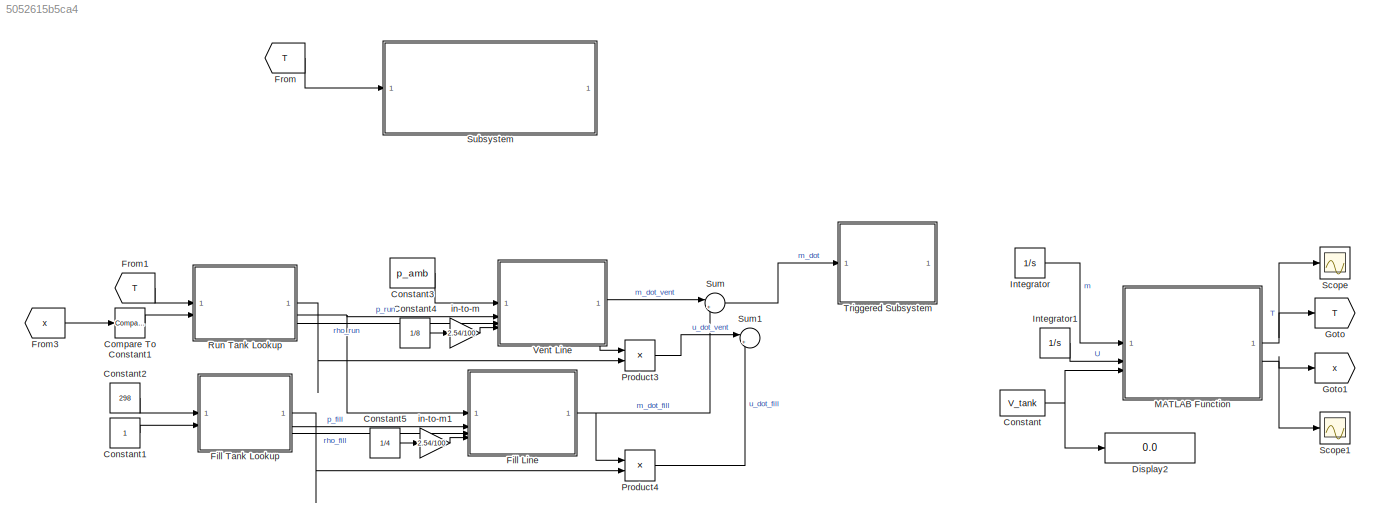
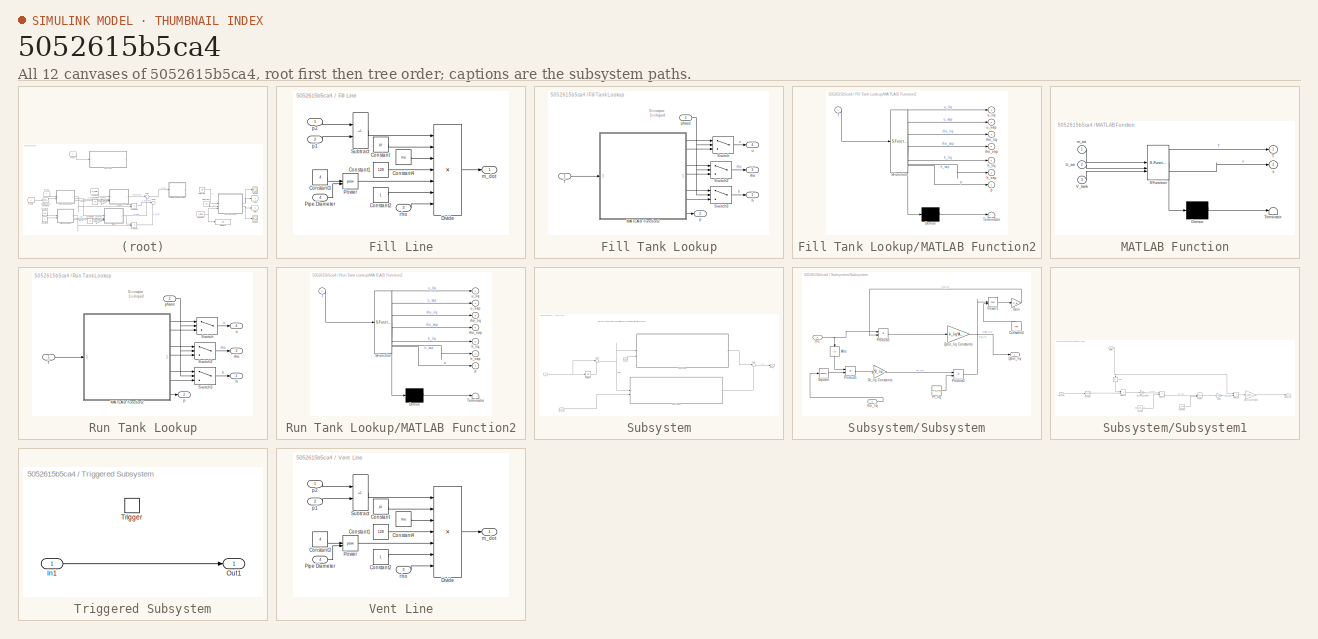
[diagram: thumbnail index - all 12 canvases of the model, root first then tree order]
MODEL slx_5052615b5ca4
KIND model
CONFIG AbsTol = auto
CONFIG EnableMultiTasking = off
CONFIG FixedStep = auto
CONFIG MaxStep = auto
CONFIG MinStep = auto
CONFIG RelTol = 1e-3
CONFIG SampleTimeConstraint = Unconstrained
CONFIG SolverName = VariableStepAuto
CONFIG StartTime = 0.0
CONFIG StopTime = 10
BLOCK [Reference] Compare To Constant1  REF=simulink/Logic and Bit
Operations/Compare
To Constant
  SourceBlock = simulink/Logic and Bit\nOperations/Compare\nTo Constant
  SourceType = Compare To Constant
BLOCK [Constant] Constant
  Value = V_tank
BLOCK [Constant] Constant1
BLOCK [Constant] Constant2
  Value = 298
BLOCK [Constant] Constant3
  Value = p_amb
BLOCK [Constant] Constant4
  Value = 1/8
BLOCK [Constant] Constant5
  Value = 1/4
BLOCK [Display] Display2
  Decimation = 1
BLOCK [SubSystem] Fill Line
BLOCK [Constant] Fill Line/Constant
  Value = pi
BLOCK [Constant] Fill Line/Constant1
  Value = 128
BLOCK [Constant] Fill Line/Constant2
  Value = L
BLOCK [Constant] Fill Line/Constant3
  Value = 4
BLOCK [Constant] Fill Line/Constant4
  Value = mu
BLOCK [Product] Fill Line/Divide
  Inputs = **//*//
BLOCK [Inport] Fill Line/Pipe Diameter
  Port = 4
BLOCK [Math] Fill Line/Power
  Operator = pow
BLOCK [Sum] Fill Line/Subtract
  IconShape = rectangular
  Inputs = +-
BLOCK [Outport] Fill Line/m_dot
BLOCK [Inport] Fill Line/p1
  Port = 2
BLOCK [Inport] Fill Line/p2
BLOCK [Inport] Fill Line/rho
  Port = 3
BLOCK [SubSystem] Fill Tank Lookup
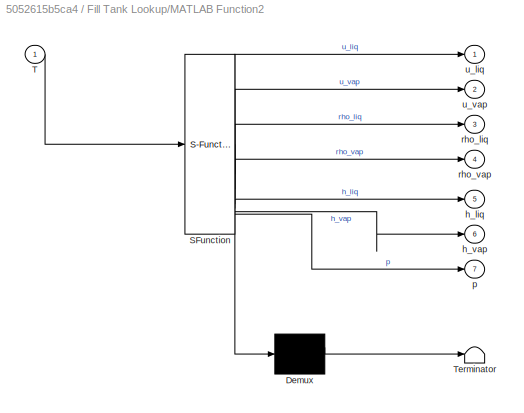
BLOCK [SubSystem] Fill Tank Lookup/MATLAB Function2
  ErrorFcn = Stateflow.Translate.translate
  PermitHierarchicalResolution = ExplicitOnly
  SFBlockType = MATLAB Function
  TreatAsAtomicUnit = on
BLOCK [Demux] Fill Tank Lookup/MATLAB Function2/ Demux 
  Outputs = 1
BLOCK [S-Function] Fill Tank Lookup/MATLAB Function2/ SFunction 
  EnableBusSupport = off
  FunctionName = sf_sfun
  PortCounts = [1 8]
  SFcnIsStateOwnerBlock = off
  SFunctionDeploymentMode = off
  Tag = Stateflow S-Function 3
BLOCK [Terminator] Fill Tank Lookup/MATLAB Function2/ Terminator 
BLOCK [Inport] Fill Tank Lookup/MATLAB Function2/T
BLOCK [Outport] Fill Tank Lookup/MATLAB Function2/h_liq
  Port = 5
BLOCK [Outport] Fill Tank Lookup/MATLAB Function2/h_vap
  Port = 6
BLOCK [Outport] Fill Tank Lookup/MATLAB Function2/p
  Port = 7
BLOCK [Outport] Fill Tank Lookup/MATLAB Function2/rho_liq
  Port = 3
BLOCK [Outport] Fill Tank Lookup/MATLAB Function2/rho_vap
  Port = 4
BLOCK [Outport] Fill Tank Lookup/MATLAB Function2/u_liq
  VectorParamsAs1DForOutWhenUnconnected = off
BLOCK [Outport] Fill Tank Lookup/MATLAB Function2/u_vap
  Port = 2
BLOCK [Switch] Fill Tank Lookup/Switch
  Criteria = u2 > Threshold
  InputSameDT = off
  SaturateOnIntegerOverflow = off
BLOCK [Switch] Fill Tank Lookup/Switch2
  Criteria = u2 > Threshold
  InputSameDT = off
  SaturateOnIntegerOverflow = off
BLOCK [Switch] Fill Tank Lookup/Switch3
  Criteria = u2 > Threshold
  InputSameDT = off
  SaturateOnIntegerOverflow = off
BLOCK [Inport] Fill Tank Lookup/T
BLOCK [Outport] Fill Tank Lookup/h
BLOCK [Outport] Fill Tank Lookup/p
  Port = 2
BLOCK [Inport] Fill Tank Lookup/phase
  Port = 2
BLOCK [Outport] Fill Tank Lookup/rho
  Port = 3
BLOCK [Outport] Fill Tank Lookup/u
  Port = 4
BLOCK [From] From
  GotoTag = T
BLOCK [From] From1
  GotoTag = T
BLOCK [From] From3
  GotoTag = x
BLOCK [Goto] Goto
  GotoTag = T
BLOCK [Goto] Goto1
  GotoTag = x
BLOCK [Integrator] Integrator
  InitialCondition = m_tot0
BLOCK [Integrator] Integrator1
  InitialCondition = U_tot0
BLOCK [SubSystem] MATLAB Function
  ErrorFcn = Stateflow.Translate.translate
  PermitHierarchicalResolution = ExplicitOnly
  SFBlockType = MATLAB Function
  TreatAsAtomicUnit = on
BLOCK [Demux] MATLAB Function/ Demux 
  Outputs = 1
BLOCK [S-Function] MATLAB Function/ SFunction 
  EnableBusSupport = off
  FunctionName = sf_sfun
  PortCounts = [3 3]
  SFcnIsStateOwnerBlock = off
  SFunctionDeploymentMode = off
  Tag = Stateflow S-Function 2
BLOCK [Terminator] MATLAB Function/ Terminator 
BLOCK [Outport] MATLAB Function/T
BLOCK [Inport] MATLAB Function/U_tot
  Port = 2
BLOCK [Inport] MATLAB Function/V_tank
  Port = 3
BLOCK [Inport] MATLAB Function/m_tot
BLOCK [Outport] MATLAB Function/x
  Port = 2
BLOCK [Product] Product3
BLOCK [Product] Product4
BLOCK [SubSystem] Run Tank Lookup
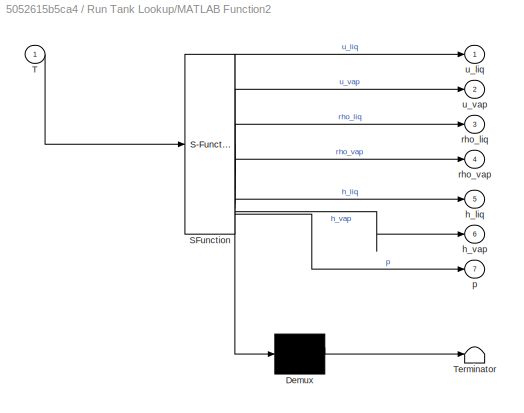
BLOCK [SubSystem] Run Tank Lookup/MATLAB Function2
  ErrorFcn = Stateflow.Translate.translate
  PermitHierarchicalResolution = ExplicitOnly
  SFBlockType = MATLAB Function
  TreatAsAtomicUnit = on
BLOCK [Demux] Run Tank Lookup/MATLAB Function2/ Demux 
  Outputs = 1
BLOCK [S-Function] Run Tank Lookup/MATLAB Function2/ SFunction 
  EnableBusSupport = off
  FunctionName = sf_sfun
  PortCounts = [1 8]
  SFcnIsStateOwnerBlock = off
  SFunctionDeploymentMode = off
  Tag = Stateflow S-Function 1
BLOCK [Terminator] Run Tank Lookup/MATLAB Function2/ Terminator 
BLOCK [Inport] Run Tank Lookup/MATLAB Function2/T
BLOCK [Outport] Run Tank Lookup/MATLAB Function2/h_liq
  Port = 5
BLOCK [Outport] Run Tank Lookup/MATLAB Function2/h_vap
  Port = 6
BLOCK [Outport] Run Tank Lookup/MATLAB Function2/p
  Port = 7
BLOCK [Outport] Run Tank Lookup/MATLAB Function2/rho_liq
  Port = 3
BLOCK [Outport] Run Tank Lookup/MATLAB Function2/rho_vap
  Port = 4
BLOCK [Outport] Run Tank Lookup/MATLAB Function2/u_liq
  VectorParamsAs1DForOutWhenUnconnected = off
BLOCK [Outport] Run Tank Lookup/MATLAB Function2/u_vap
  Port = 2
BLOCK [Switch] Run Tank Lookup/Switch
  Criteria = u2 > Threshold
  InputSameDT = off
  SaturateOnIntegerOverflow = off
BLOCK [Switch] Run Tank Lookup/Switch2
  Criteria = u2 > Threshold
  InputSameDT = off
  SaturateOnIntegerOverflow = off
BLOCK [Switch] Run Tank Lookup/Switch3
  Criteria = u2 > Threshold
  InputSameDT = off
  SaturateOnIntegerOverflow = off
BLOCK [Inport] Run Tank Lookup/T
BLOCK [Outport] Run Tank Lookup/h
BLOCK [Outport] Run Tank Lookup/p
  Port = 2
BLOCK [Inport] Run Tank Lookup/phase
  Port = 2
BLOCK [Outport] Run Tank Lookup/rho
  Port = 3
BLOCK [Outport] Run Tank Lookup/u
  Port = 4
BLOCK [Scope] Scope
  ActiveDisplayYMaximum = 318.16653133785104
  ActiveDisplayYMinimum = 285.16578367227339
  Floating = off
  GraphicalSettings = {"AxesScalingProperties":{"AlignXAxis":"Center","AlignYAxis":"Center","AutoScaleXAxisLimits":false,"AxesScaling":"Manual","AxesScalingNumUpdates":10,"ExpandOnly":true,"ScaleAxesLimitsAtStop":false,"XAxisDataRange":100,"YAxisDataRange":80},"DisplayProperties":{"ColorOrder":["auto","auto","auto","auto","auto","auto","auto","auto","auto","auto","auto","auto","auto","auto","auto","auto","auto","auto",...<+2019ch>
  MultipleDisplayCache = [{"MaxYLimMag":310.37498270385339,"MaxYLimReal":318.16653133785104,"MinYLimMag":296.625155660714,"MinYLimReal":285.16578367227339,"PlotAsMagnitudePhase":false,"ShowGrid":true,"ShowLegend":false,"Title":"%<SignalLabel>","YLabel":""}]
  NumInputPorts = 1
  ScopeFrameLocation = window
  WasSavedAsWebScope = on
  WindowPosition = [252.000000,-57.000000,957.000000,844.000000,]
BLOCK [Scope] Scope1
  ActiveDisplayYMaximum = 6.8981720116049186
  ActiveDisplayYMinimum = -4.5898613778918289
  DataLoggingVariableName = ScopeData1
  Floating = off
  GraphicalSettings = {"AxesScalingProperties":{"AlignXAxis":"Center","AlignYAxis":"Center","AutoScaleXAxisLimits":false,"AxesScaling":"Manual","AxesScalingNumUpdates":10,"ExpandOnly":true,"ScaleAxesLimitsAtStop":false,"XAxisDataRange":100,"YAxisDataRange":80},"DisplayProperties":{"ColorOrder":["auto","auto","auto","auto","auto","auto","auto","auto","auto","auto","auto","auto","auto","auto","auto","auto","auto","auto",...<+2002ch>
  MultipleDisplayCache = [{"MaxYLimMag":4.78271456468242,"MaxYLimReal":6.8981720116049186,"MinYLimMag":0,"MinYLimReal":-4.5898613778918289,"PlotAsMagnitudePhase":false,"ShowGrid":true,"ShowLegend":false,"Title":"%<SignalLabel>","YLabel":""}]
  NumInputPorts = 1
  ScopeFrameLocation = window
  WasSavedAsWebScope = on
  WindowPosition = [203.000000,-40.000000,957.000000,844.000000,]
BLOCK [SubSystem] Subsystem
BLOCK [Outport] Subsystem/Qdot_f
BLOCK [SubSystem] Subsystem/Subsystem
BLOCK [Abs] Subsystem/Subsystem/Abs
  NameLocation = left
  SaturateOnIntegerOverflow = off
BLOCK [Constant] Subsystem/Subsystem/Constant4
  NameLocation = right
  Value = n_liq
BLOCK [Gain] Subsystem/Subsystem/Gain
  Gain = C_liq
BLOCK [Gain] Subsystem/Subsystem/Gr_liq Constants
  Gain = g*B_liq*L^3/mu^2
BLOCK [Inport] Subsystem/Subsystem/In1
BLOCK [Math] Subsystem/Subsystem/Power1
  Operator = pow
BLOCK [Constant] Subsystem/Subsystem/Pr_liq
  Value = mu*c_p/k_liq
BLOCK [Product] Subsystem/Subsystem/Product1
BLOCK [Product] Subsystem/Subsystem/Product2
BLOCK [Product] Subsystem/Subsystem/Product3
BLOCK [Outport] Subsystem/Subsystem/Qdot_liq
BLOCK [Gain] Subsystem/Subsystem/Qdot_liq Constants
  Gain = k_liq*A/L
BLOCK [Math] Subsystem/Subsystem/Square
  Operator = square
BLOCK [Inport] Subsystem/Subsystem/rho_liq
  Port = 2
BLOCK [SubSystem] Subsystem/Subsystem1
BLOCK [Abs] Subsystem/Subsystem1/Abs
  NameLocation = left
  SaturateOnIntegerOverflow = off
BLOCK [Constant] Subsystem/Subsystem1/Constant
  Value = n_vap
BLOCK [Inport] Subsystem/Subsystem1/Delta T
BLOCK [Gain] Subsystem/Subsystem1/Gain1
  Gain = C_vap
BLOCK [Gain] Subsystem/Subsystem1/Gr_vap Constants
  Gain = g*B_vap*L^3/mu^2
BLOCK [Math] Subsystem/Subsystem1/Power
  Operator = pow
BLOCK [Constant] Subsystem/Subsystem1/Pr_vap
  Value = mu*c_p/k_vap
BLOCK [Product] Subsystem/Subsystem1/Product
BLOCK [Product] Subsystem/Subsystem1/Product1
BLOCK [Product] Subsystem/Subsystem1/Product4
BLOCK [Outport] Subsystem/Subsystem1/Qdot_vap
BLOCK [Gain] Subsystem/Subsystem1/Qdot_vap Constants
  Gain = k_vap*A/L
BLOCK [Math] Subsystem/Subsystem1/Square1
  Operator = square
BLOCK [Inport] Subsystem/Subsystem1/rho_vap
  Port = 2
BLOCK [Sum] Subsystem/Sum
  Inputs = |++
BLOCK [Sum] Subsystem/Sum1
  Inputs = |+-
BLOCK [Inport] Subsystem/T
BLOCK [UnitDelay] Subsystem/Unit Delay
  HasFrameUpgradeWarning = on
  SampleTime = -1
BLOCK [Inport] Subsystem/rho_liq
  Port = 2
BLOCK [Inport] Subsystem/rho_vap
  Port = 3
BLOCK [Sum] Sum
  Inputs = |++
BLOCK [Sum] Sum1
  Inputs = |++
BLOCK [SubSystem] Triggered Subsystem
  TreatAsAtomicUnit = on
BLOCK [Inport] Triggered Subsystem/In1
BLOCK [Outport] Triggered Subsystem/Out1
BLOCK [TriggerPort] Triggered Subsystem/Trigger
  StatesWhenEnabling = held
  VariantControl = (inherit)
BLOCK [SubSystem] Vent Line
BLOCK [Constant] Vent Line/Constant
  Value = pi
BLOCK [Constant] Vent Line/Constant1
  Value = 128
BLOCK [Constant] Vent Line/Constant2
  Value = L
BLOCK [Constant] Vent Line/Constant3
  Value = 4
BLOCK [Constant] Vent Line/Constant4
  Value = mu
BLOCK [Product] Vent Line/Divide
  Inputs = **//*//
BLOCK [Inport] Vent Line/Pipe Diameter
  Port = 4
BLOCK [Math] Vent Line/Power
  Operator = pow
BLOCK [Sum] Vent Line/Subtract
  IconShape = rectangular
  Inputs = +-
BLOCK [Outport] Vent Line/m_dot
BLOCK [Inport] Vent Line/p1
  Port = 2
BLOCK [Inport] Vent Line/p2
BLOCK [Inport] Vent Line/rho
  Port = 3
BLOCK [Gain] in-to-m
  Gain = 2.54/100
BLOCK [Gain] in-to-m1
  Gain = 2.54/100
ANNOTATION Fill Tank Lookup: 0==vapor 1==liquid
ANNOTATION Run Tank Lookup: 0==vapor 1==liquid
ANNOTATION Subsystem: This Subsystem contains solvers for the Convection rates of the Nitrous Vapor and Liquid Phases. The first input is the change in Temperature, which I computed by taking the outputted temperature of the whole system, and subtracting the temperature by the previous iteration's temperature with a unit delay. Other inputs are the liquid and vapor densities.
LINE Compare To Constant1:1 -> Run Tank Lookup:2
LINE Constant1:1 -> Fill Tank Lookup:2
LINE Constant2:1 -> Fill Tank Lookup:1
LINE Constant3:1 -> Vent Line:1
LINE Constant4:1 -> in-to-m:1
LINE Constant5:1 -> in-to-m1:1
NET Constant:1 -> Display2:1, MATLAB Function:3
LINE Fill Line/Constant1:1 -> Fill Line/Divide:4
LINE Fill Line/Constant2:1 -> Fill Line/Divide:6
LINE Fill Line/Constant3:1 -> Fill Line/Power:1
LINE Fill Line/Constant4:1 -> Fill Line/Divide:3
LINE Fill Line/Constant:1 -> Fill Line/Divide:2
LINE Fill Line/Divide:1 -> Fill Line/m_dot:1
LINE Fill Line/Pipe Diameter:1 -> Fill Line/Power:2
LINE Fill Line/Power:1 -> Fill Line/Divide:5
LINE Fill Line/Subtract:1 -> Fill Line/Divide:1
LINE Fill Line/p1:1 -> Fill Line/Subtract:2
LINE Fill Line/p2:1 -> Fill Line/Subtract:1
LINE Fill Line/rho:1 -> Fill Line/Divide:7
NET Fill Line:1 -> Product4:1, Sum:2
LINE Fill Tank Lookup/MATLAB Function2:1 -> Fill Tank Lookup/Switch:1
LINE Fill Tank Lookup/MATLAB Function2:2 -> Fill Tank Lookup/Switch:3
LINE Fill Tank Lookup/MATLAB Function2:3 -> Fill Tank Lookup/Switch2:1
LINE Fill Tank Lookup/MATLAB Function2:4 -> Fill Tank Lookup/Switch2:3
LINE Fill Tank Lookup/MATLAB Function2:5 -> Fill Tank Lookup/Switch3:1
LINE Fill Tank Lookup/MATLAB Function2:6 -> Fill Tank Lookup/Switch3:3
LINE Fill Tank Lookup/MATLAB Function2:7 -> Fill Tank Lookup/p:1
LINE Fill Tank Lookup/Switch2:1 -> Fill Tank Lookup/rho:1
LINE Fill Tank Lookup/Switch3:1 -> Fill Tank Lookup/h:1
LINE Fill Tank Lookup/Switch:1 -> Fill Tank Lookup/u:1
LINE Fill Tank Lookup/T:1 -> Fill Tank Lookup/MATLAB Function2:1
NET Fill Tank Lookup/phase:1 -> Fill Tank Lookup/Switch2:2, Fill Tank Lookup/Switch3:2, Fill Tank Lookup/Switch:2
LINE Fill Tank Lookup:1 -> Product4:2
LINE Fill Tank Lookup:2 -> Fill Line:2
LINE Fill Tank Lookup:3 -> Fill Line:3
LINE From1:1 -> Run Tank Lookup:1
LINE From3:1 -> Compare To Constant1:1
LINE From:1 -> Subsystem:1
LINE Integrator1:1 -> MATLAB Function:2
LINE Integrator:1 -> MATLAB Function:1
NET MATLAB Function:1 -> Goto:1, Scope:1
NET MATLAB Function:2 -> Goto1:1, Scope1:1
LINE Product3:1 -> Sum1:1
LINE Product4:1 -> Sum1:2
LINE Run Tank Lookup/MATLAB Function2:1 -> Run Tank Lookup/Switch:1
LINE Run Tank Lookup/MATLAB Function2:2 -> Run Tank Lookup/Switch:3
LINE Run Tank Lookup/MATLAB Function2:3 -> Run Tank Lookup/Switch2:1
LINE Run Tank Lookup/MATLAB Function2:4 -> Run Tank Lookup/Switch2:3
LINE Run Tank Lookup/MATLAB Function2:5 -> Run Tank Lookup/Switch3:1
LINE Run Tank Lookup/MATLAB Function2:6 -> Run Tank Lookup/Switch3:3
LINE Run Tank Lookup/MATLAB Function2:7 -> Run Tank Lookup/p:1
LINE Run Tank Lookup/Switch2:1 -> Run Tank Lookup/rho:1
LINE Run Tank Lookup/Switch3:1 -> Run Tank Lookup/h:1
LINE Run Tank Lookup/Switch:1 -> Run Tank Lookup/u:1
LINE Run Tank Lookup/T:1 -> Run Tank Lookup/MATLAB Function2:1
NET Run Tank Lookup/phase:1 -> Run Tank Lookup/Switch2:2, Run Tank Lookup/Switch3:2, Run Tank Lookup/Switch:2
LINE Run Tank Lookup:1 -> Product3:2
NET Run Tank Lookup:2 -> Fill Line:1, Vent Line:2
LINE Run Tank Lookup:3 -> Vent Line:3
LINE Subsystem/Subsystem/Abs:1 -> Subsystem/Subsystem/Product1:1
LINE Subsystem/Subsystem/Constant4:1 -> Subsystem/Subsystem/Power1:2
LINE Subsystem/Subsystem/Gain:1 -> Subsystem/Subsystem/Product3:2
LINE Subsystem/Subsystem/Gr_liq Constants:1 -> Subsystem/Subsystem/Product2:1
NET Subsystem/Subsystem/In1:1 -> Subsystem/Subsystem/Abs:1, Subsystem/Subsystem/Product3:1
LINE Subsystem/Subsystem/Power1:1 -> Subsystem/Subsystem/Gain:1
LINE Subsystem/Subsystem/Pr_liq:1 -> Subsystem/Subsystem/Product2:2
LINE Subsystem/Subsystem/Product1:1 -> Subsystem/Subsystem/Gr_liq Constants:1
LINE Subsystem/Subsystem/Product2:1 -> Subsystem/Subsystem/Power1:1
LINE Subsystem/Subsystem/Product3:1 -> Subsystem/Subsystem/Qdot_liq Constants:1
LINE Subsystem/Subsystem/Qdot_liq Constants:1 -> Subsystem/Subsystem/Qdot_liq:1
LINE Subsystem/Subsystem/Square:1 -> Subsystem/Subsystem/Product1:2
LINE Subsystem/Subsystem/rho_liq:1 -> Subsystem/Subsystem/Square:1
LINE Subsystem/Subsystem1/Abs:1 -> Subsystem/Subsystem1/Product:1
LINE Subsystem/Subsystem1/Constant:1 -> Subsystem/Subsystem1/Power:2
NET Subsystem/Subsystem1/Delta T:1 -> Subsystem/Subsystem1/Abs:1, Subsystem/Subsystem1/Product1:1
LINE Subsystem/Subsystem1/Gain1:1 -> Subsystem/Subsystem1/Product1:2
LINE Subsystem/Subsystem1/Gr_vap Constants:1 -> Subsystem/Subsystem1/Product4:1
LINE Subsystem/Subsystem1/Power:1 -> Subsystem/Subsystem1/Gain1:1
LINE Subsystem/Subsystem1/Pr_vap:1 -> Subsystem/Subsystem1/Product4:2
LINE Subsystem/Subsystem1/Product1:1 -> Subsystem/Subsystem1/Qdot_vap Constants:1
LINE Subsystem/Subsystem1/Product4:1 -> Subsystem/Subsystem1/Power:1
LINE Subsystem/Subsystem1/Product:1 -> Subsystem/Subsystem1/Gr_vap Constants:1
LINE Subsystem/Subsystem1/Qdot_vap Constants:1 -> Subsystem/Subsystem1/Qdot_vap:1
LINE Subsystem/Subsystem1/Square1:1 -> Subsystem/Subsystem1/Product:2
LINE Subsystem/Subsystem1/rho_vap:1 -> Subsystem/Subsystem1/Square1:1
LINE Subsystem/Subsystem1:1 -> Subsystem/Sum:2
LINE Subsystem/Subsystem:1 -> Subsystem/Sum:1
NET Subsystem/Sum1:1 -> Subsystem/Subsystem1:1, Subsystem/Subsystem:1
LINE Subsystem/Sum:1 -> Subsystem/Qdot_f:1
NET Subsystem/T:1 -> Subsystem/Sum1:1, Subsystem/Unit Delay:1
LINE Subsystem/Unit Delay:1 -> Subsystem/Sum1:2
LINE Subsystem/rho_liq:1 -> Subsystem/Subsystem:2
LINE Subsystem/rho_vap:1 -> Subsystem/Subsystem1:2
LINE Sum:1 -> Triggered Subsystem:1
LINE Triggered Subsystem/In1:1 -> Triggered Subsystem/Out1:1
LINE Vent Line/Constant1:1 -> Vent Line/Divide:4
LINE Vent Line/Constant2:1 -> Vent Line/Divide:6
LINE Vent Line/Constant3:1 -> Vent Line/Power:1
LINE Vent Line/Constant4:1 -> Vent Line/Divide:3
LINE Vent Line/Constant:1 -> Vent Line/Divide:2
LINE Vent Line/Divide:1 -> Vent Line/m_dot:1
LINE Vent Line/Pipe Diameter:1 -> Vent Line/Power:2
LINE Vent Line/Power:1 -> Vent Line/Divide:5
LINE Vent Line/Subtract:1 -> Vent Line/Divide:1
LINE Vent Line/p1:1 -> Vent Line/Subtract:2
LINE Vent Line/p2:1 -> Vent Line/Subtract:1
LINE Vent Line/rho:1 -> Vent Line/Divide:7
NET Vent Line:1 -> Product3:1, Sum:1
LINE in-to-m1:1 -> Fill Line:4
LINE in-to-m:1 -> Vent Line:4
note: NET lines group one-source signal fan-out (src -> all destinations, sorted); 1:1 wires keep LINE
CHART Run Tank Lookup/MATLAB Function2 states=1 transitions=1
  STATE_LABEL 'eML_blk_kernel()'
  STATE_LABEL 'SCRIPT:\nfunction [u_liq,u_vap,rho_liq,rho_vap,h_liq,h_vap,p] = CoolPropLookup(T)\nlookup = load(\'CoolPropLookup.mat\');\nu_liq = interp1(lookup.T_range, lookup.u_liq, T,"linear");\nu_vap = interp1(lookup.T_range, lookup.u_vap, T,"linear");\nrho_liq = interp1(lookup.T_range, lookup.rho_liq, T,"linear");\nrho_vap = interp1(lookup.T_range, lookup.rho_vap, T,"linear");\nh_liq = interp1(lookup.T_range, lookup...<+132ch>'
CHART MATLAB Function states=1 transitions=1
  STATE_LABEL 'eML_blk_kernel()'
  STATE_LABEL "SCRIPT:\nfunction [T, x]= calculate_state(m_tot, U_tot, V_tank)\n    lookup = load('CoolPropLookup.mat');\n    T_range = lookup.T_range;\n    u_liq = lookup.u_liq;\n    u_vap = lookup.u_vap;\n    rho_vap = lookup.rho_vap;\n    rho_liq = lookup.rho_liq;\n    h_vap = lookup.h_vap;\n    h_liq = lookup.h_liq;\n    p = lookup.p;\n    % Resduals anonymous function given U_tot m_tot and V_tank\n    residual_function...<+557ch>"
CHART Fill Tank Lookup/MATLAB Function2 states=1 transitions=1
  STATE_LABEL 'eML_blk_kernel()'
  STATE_LABEL 'SCRIPT:\nfunction [u_liq,u_vap,rho_liq,rho_vap,h_liq,h_vap,p] = CoolPropLookup(T)\nlookup = load(\'CoolPropLookup.mat\');\nu_liq = interp1(lookup.T_range, lookup.u_liq, T,"linear");\nu_vap = interp1(lookup.T_range, lookup.u_vap, T,"linear");\nrho_liq = interp1(lookup.T_range, lookup.rho_liq, T,"linear");\nrho_vap = interp1(lookup.T_range, lookup.rho_vap, T,"linear");\nh_liq = interp1(lookup.T_range, lookup...<+132ch>'
CHART  states=0 transitions=0
CHART  states=0 transitions=0
CHART  states=0 transitions=0
